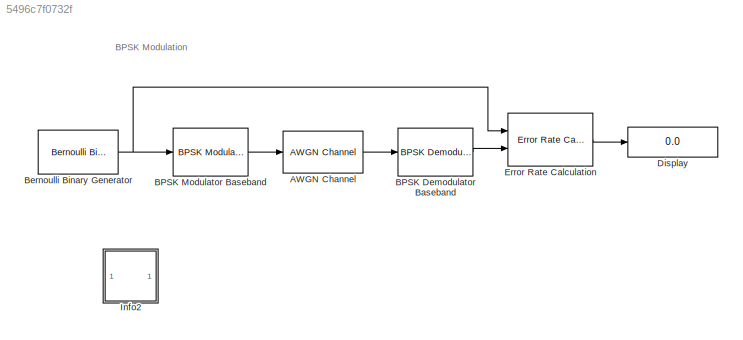
MODEL slx_5496c7f0732f
KIND model
BLOCK [Reference] AWGN Channel  REF=commchan3/AWGN
Channel
  EbNodB = 10
  EsNodB = 4.2
  InputProcessing = Columns as channels (frame based)
  Ports = [1, 1]
  Ps = 1
  SNRdB = 10
  SourceBlock = commchan3/AWGN\nChannel
  SourceType = AWGN Channel
  Tsym = 1
  UserDataPersistent = on
  bitsPerSym = 1
  noiseMode = Signal to noise ratio  (Es/No)
  seed = 1237
  variance = 1
BLOCK [Reference] BPSK Demodulator Baseband  REF=commdigbbndpm3/BPSK
Demodulator
Baseband
  DecType = Hard decision
  Ph = 0
  Ports = [1, 1]
  SourceBlock = commdigbbndpm3/BPSK\nDemodulator\nBaseband
  SourceType = BPSK Demodulator Baseband
  VarSource = Dialog
  Variance = 1
  derotateFactorDTMode = Same word length as input
  derotateFactorWordLen = 16
  outDtype = double
BLOCK [Reference] BPSK Modulator Baseband  REF=commdigbbndpm3/BPSK
Modulator
Baseband
  Ph = 0
  Ports = [1, 1]
  SourceBlock = commdigbbndpm3/BPSK\nModulator\nBaseband
  SourceType = BPSK Modulator Baseband
  outDtype = double
  outFracLen = 15
  outFracLenMode = Best precision
  outUDDataType = sfix(16)
  outWordLen = 16
BLOCK [Reference] Bernoulli Binary Generator  REF=commrandsrc2/Bernoulli Binary
Generator
  P = 0.5
  Ports = [0, 1]
  SourceBlock = commrandsrc2/Bernoulli Binary\nGenerator
  SourceType = Bernoulli Binary Generator
  Ts = 1
  frameBased = off
  orient = off
  outDataType = double
  sampPerFrame = 1
  seed = 61
BLOCK [Display] Display
  Decimation = 1
  Ports = [1]
BLOCK [Reference] Error Rate Calculation  REF=commsink2/Error Rate
Calculation
  N = 0
  PMode = Port
  Ports = [2, 1]
  RsMode2 = off
  SourceBlock = commsink2/Error Rate\nCalculation
  SourceType = Error Rate Calculation
  WsName = ErrorVec
  cp_mode = Entire frame
  maxBits = 1e6
  numErr = 100
  st_delay = 0
  stop = on
  subframe = []
BLOCK [SubSystem] Info2
  AncestorBlock = commblksprivate/Info
  OpenFcn = helpview([docroot '/toolbox/comm/comm.map'], 'doc_bpsk')
  Ports = []
  RequestExecContextInheritance = off
ANNOTATION (root): BPSK Modulation
LINE AWGN Channel:1 -> BPSK Demodulator Baseband:1
LINE BPSK Demodulator Baseband:1 -> Error Rate Calculation:2
LINE BPSK Modulator Baseband:1 -> AWGN Channel:1
NET Bernoulli Binary Generator:1 -> BPSK Modulator Baseband:1, Error Rate Calculation:1
LINE Error Rate Calculation:1 -> Display:1
note: NET lines group one-source signal fan-out (src -> all destinations, sorted); 1:1 wires keep LINE
